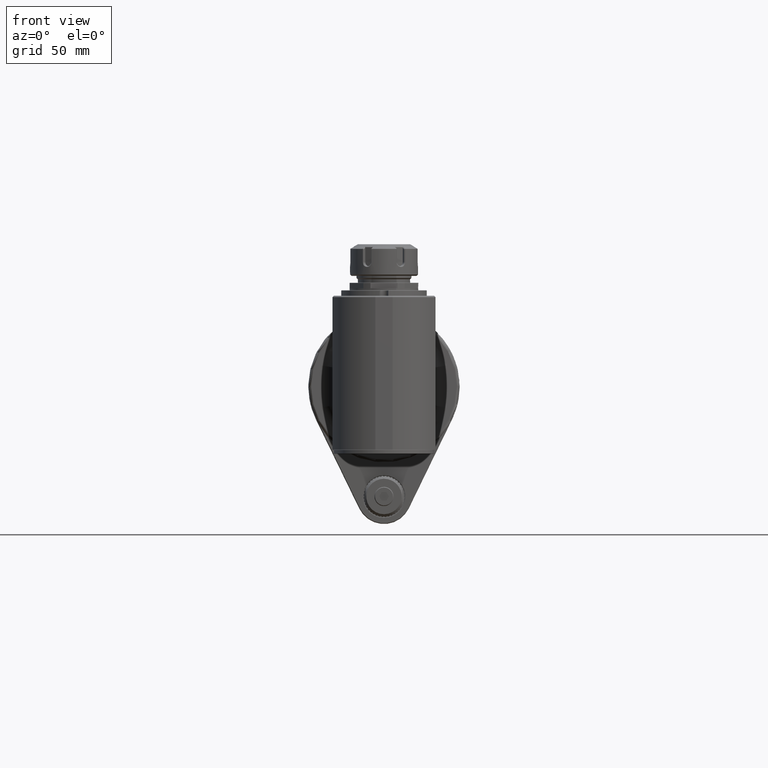
[diagram: clean part render]
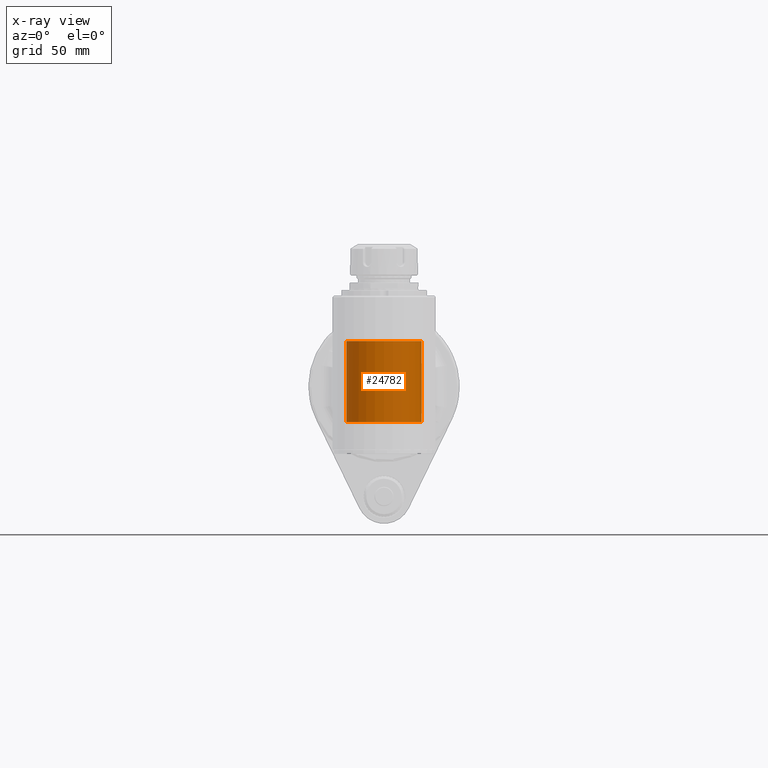
[diagram: x-ray — body ghosted, one internal face saturated and labeled with its STEP entity id]
A machine part, front view, then the same camera in x-ray: the body is ghosted and one INTERNAL B-rep face — a face not visible from any outside direction — is saturated and labeled: STEP entity #24782.
In plain terms, the highlighted cylindrical surface (bore or boss wall) has radius 27.5 mm, axis along (0, 0, -1).
Its self-contained STEP definition (entity closure, byte-faithful):
#346=B_SPLINE_CURVE_WITH_KNOTS('',3,(#36040,#36041,#36042,#36043,#36044,
#36045,#36046,#36047,#36048,#36049,#36050,#36051,#36052,#36053,#36054,#36055,
#36056,#36057),.UNSPECIFIED.,.F.,.F.,(4,2,2,2,2,2,2,2,4),(-10.0841049185803,
-9.9106032085018,-9.73710149842327,-9.3900980782662,-8.69609123795207,-8.00208439763794,
-7.3080775573238,-6.74157128281539,-6.22928469829338),.UNSPECIFIED.);
#347=B_SPLINE_CURVE_WITH_KNOTS('',3,(#36060,#36061,#36062,#36063,#36064,
#36065,#36066,#36067,#36068,#36069,#36070,#36071,#36072,#36073,#36074,#36075,
#36076,#36077),.UNSPECIFIED.,.F.,.F.,(4,2,2,2,2,2,2,2,4),(-13.9389251388673,
-13.4266385543453,-12.8601322798369,-12.1661254395227,-11.4721185992086,
-10.7781117588945,-10.4311083387374,-10.2576066286589,-10.0841049185803),
 .UNSPECIFIED.);
#351=B_SPLINE_CURVE_WITH_KNOTS('',3,(#36172,#36173,#36174,#36175,#36176,
#36177,#36178,#36179,#36180,#36181,#36182,#36183,#36184,#36185,#36186,#36187,
#36188,#36189),.UNSPECIFIED.,.F.,.F.,(4,2,2,2,2,2,2,2,4),(-3.8548202202869,
-3.3425336357649,-2.77602736125649,-2.08202052094237,-1.38801368062824,
-0.694006840314122,-0.347003420157061,-0.17350171007853,0.),
 .UNSPECIFIED.);
#352=B_SPLINE_CURVE_WITH_KNOTS('',3,(#36191,#36192,#36193,#36194,#36195,
#36196,#36197,#36198,#36199,#36200,#36201,#36202,#36203,#36204,#36205,#36206,
#36207,#36208,#36209,#36210,#36211,#36212,#36213,#36214,#36215,#36216,#36217,
#36218,#36219,#36220,#36221),.UNSPECIFIED.,.F.,.F.,(4,3,3,3,3,3,3,3,3,3,
4),(0.,0.1,0.2,0.3,0.4,0.5,0.6,0.7,0.8,0.9,1.),.UNSPECIFIED.);
#355=B_SPLINE_CURVE_WITH_KNOTS('',3,(#36249,#36250,#36251,#36252,#36253,
#36254,#36255,#36256,#36257,#36258,#36259,#36260),.UNSPECIFIED.,.F.,.F.,
(4,2,2,2,2,4),(-20.1682098371607,-19.9947081270821,-19.8212064170036,-19.4742029968466,
-18.7801961565324,-18.3290605522606),.UNSPECIFIED.);
#356=B_SPLINE_CURVE_WITH_KNOTS('',3,(#36266,#36267,#36268,#36269,#36270,
#36271,#36272,#36273,#36274,#36275,#36276,#36277,#36278,#36279,#36280,#36281,
#36282,#36283,#36284),.UNSPECIFIED.,.F.,.F.,(4,2,3,2,2,2,2,2,4),(2.79262586300362,
2.89720806955063,3.06038654016411,3.22356501077758,3.38674348139105,3.58908985584481,
3.79143623029857,4.02236570158723,4.15806907937397),.UNSPECIFIED.);
#357=B_SPLINE_CURVE_WITH_KNOTS('',3,(#36285,#36286,#36287,#36288,#36289,
#36290,#36291,#36292,#36293,#36294,#36295,#36296,#36297,#36298),
 .UNSPECIFIED.,.F.,.F.,(4,2,2,2,2,2,4),(-5.70518386143808,-5.63679759697968,
-5.08484248751995,-4.53288737806022,-3.98093226860049,-3.42897715914076,
-3.36059089468718),.UNSPECIFIED.);
#876=LINE('',#35931,#3289);
#877=LINE('',#35935,#3290);
#878=LINE('',#35939,#3291);
#879=LINE('',#35942,#3292);
#884=LINE('',#36264,#3297);
#885=LINE('',#36265,#3298);
#886=LINE('',#36299,#3299);
#3289=VECTOR('',#28766,0.4510274179176);
#3290=VECTOR('',#28769,4.329645421411);
#3291=VECTOR('',#28772,4.329645421411);
#3292=VECTOR('',#28775,0.4510274179175);
#3297=VECTOR('',#28802,27.5);
#3298=VECTOR('',#28803,10.53565375285);
#3299=VECTOR('',#28804,10.53565375285);
#5696=CYLINDRICAL_SURFACE('',#26348,27.5);
#6119=FACE_OUTER_BOUND('',#7571,.T.);
#7571=EDGE_LOOP('',(#16459,#16460,#16461,#16462,#16463,#16464,#16465,#16466,
#16467,#16468,#16469,#16470,#16471,#16472,#16473,#16474,#16475,#16476));
#9160=CIRCLE('',#26340,27.5);
#9161=CIRCLE('',#26341,27.5);
#9165=CIRCLE('',#26349,27.5);
#10071=VERTEX_POINT('',#35923);
#10074=VERTEX_POINT('',#35928);
#10075=VERTEX_POINT('',#35930);
#10076=VERTEX_POINT('',#35932);
#10077=VERTEX_POINT('',#35934);
#10078=VERTEX_POINT('',#35936);
#10079=VERTEX_POINT('',#35938);
#10080=VERTEX_POINT('',#35940);
#10083=VERTEX_POINT('',#36030);
#10086=VERTEX_POINT('',#36039);
#10087=VERTEX_POINT('',#36058);
#10090=VERTEX_POINT('',#36169);
#10091=VERTEX_POINT('',#36170);
#10092=VERTEX_POINT('',#36190);
#10094=VERTEX_POINT('',#36231);
#10095=VERTEX_POINT('',#36262);
#12591=EDGE_CURVE('',#10075,#10074,#876,.T.);
#12593=EDGE_CURVE('',#10077,#10076,#877,.T.);
#12595=EDGE_CURVE('',#10078,#10079,#878,.T.);
#12597=EDGE_CURVE('',#10080,#10071,#879,.T.);
#12601=EDGE_CURVE('',#10071,#10083,#9160,.T.);
#12602=EDGE_CURVE('',#10083,#10074,#9161,.T.);
#12606=EDGE_CURVE('',#10086,#10075,#346,.T.);
#12608=EDGE_CURVE('',#10076,#10087,#347,.T.);
#12613=EDGE_CURVE('',#10080,#10090,#351,.T.);
#12614=EDGE_CURVE('',#10092,#10079,#352,.T.);
#12617=EDGE_CURVE('',#10091,#10094,#355,.T.);
#12618=EDGE_CURVE('',#10095,#10095,#9165,.T.);
#12619=EDGE_CURVE('',#10095,#10083,#884,.T.);
#12620=EDGE_CURVE('',#10091,#10090,#885,.T.);
#12621=EDGE_CURVE('',#10094,#10092,#356,.T.);
#12622=EDGE_CURVE('',#10077,#10078,#357,.T.);
#12623=EDGE_CURVE('',#10087,#10086,#886,.T.);
#16459=ORIENTED_EDGE('',*,*,#12618,.T.);
#16460=ORIENTED_EDGE('',*,*,#12619,.T.);
#16461=ORIENTED_EDGE('',*,*,#12601,.F.);
#16462=ORIENTED_EDGE('',*,*,#12597,.F.);
#16463=ORIENTED_EDGE('',*,*,#12613,.T.);
#16464=ORIENTED_EDGE('',*,*,#12620,.F.);
#16465=ORIENTED_EDGE('',*,*,#12617,.T.);
#16466=ORIENTED_EDGE('',*,*,#12621,.T.);
#16467=ORIENTED_EDGE('',*,*,#12614,.T.);
#16468=ORIENTED_EDGE('',*,*,#12595,.F.);
#16469=ORIENTED_EDGE('',*,*,#12622,.F.);
#16470=ORIENTED_EDGE('',*,*,#12593,.T.);
#16471=ORIENTED_EDGE('',*,*,#12608,.T.);
#16472=ORIENTED_EDGE('',*,*,#12623,.T.);
#16473=ORIENTED_EDGE('',*,*,#12606,.T.);
#16474=ORIENTED_EDGE('',*,*,#12591,.T.);
#16475=ORIENTED_EDGE('',*,*,#12602,.F.);
#16476=ORIENTED_EDGE('',*,*,#12619,.F.);
#24782=ADVANCED_FACE('',(#6119),#5696,.F.);
#26340=AXIS2_PLACEMENT_3D('',#36031,#28780,#28781);
#26341=AXIS2_PLACEMENT_3D('',#36032,#28782,#28783);
#26348=AXIS2_PLACEMENT_3D('',#36261,#28798,#28799);
#26349=AXIS2_PLACEMENT_3D('',#36263,#28800,#28801);
#28766=DIRECTION('',(5.120007785518E-14,0.,-1.));
#28769=DIRECTION('',(-3.692499038268E-14,0.,-1.));
#28772=DIRECTION('',(3.569415736993E-14,0.,-1.));
#28775=DIRECTION('',(-1.181540258197E-14,0.,-1.));
#28780=DIRECTION('center_axis',(0.,0.,1.));
#28781=DIRECTION('ref_axis',(0.,-1.,0.));
#28782=DIRECTION('center_axis',(0.,0.,1.));
#28783=DIRECTION('ref_axis',(0.,-1.,0.));
#28798=DIRECTION('center_axis',(0.,0.,-1.));
#28799=DIRECTION('ref_axis',(0.,1.,0.));
#28800=DIRECTION('center_axis',(0.,0.,1.));
#28801=DIRECTION('ref_axis',(0.,-1.,0.));
#28802=DIRECTION('',(0.,0.,-1.));
#28803=DIRECTION('',(0.,0.,-1.));
#28804=DIRECTION('',(0.,0.,-1.));
#35923=CARTESIAN_POINT('',(-11.45643923739,25.,-26.));
#35928=CARTESIAN_POINT('',(11.45643923739,25.,-26.));
#35930=CARTESIAN_POINT('',(11.45643923739,25.,-25.54897258208));
#35931=CARTESIAN_POINT('',(11.45643923739,25.,-25.54897258208));
#35932=CARTESIAN_POINT('',(11.45643923739,25.,25.54897258208));
#35934=CARTESIAN_POINT('',(11.45643923739,25.,29.87861800349));
#35935=CARTESIAN_POINT('',(11.45643923739,25.,29.87861800349));
#35936=CARTESIAN_POINT('',(-11.45643923739,25.,29.87861800349));
#35938=CARTESIAN_POINT('',(-11.45643923739,25.,25.54897258208));
#35939=CARTESIAN_POINT('',(-11.45643923739,25.,29.87861800349));
#35940=CARTESIAN_POINT('',(-11.45643923739,25.,-25.54897258208));
#35942=CARTESIAN_POINT('',(-11.45643923739,25.,-25.54897258208));
#36030=CARTESIAN_POINT('',(-3.36777869765522E-15,-27.5,-26.));
#36031=CARTESIAN_POINT('Origin',(0.,0.,-26.));
#36032=CARTESIAN_POINT('Origin',(0.,0.,-26.));
#36039=CARTESIAN_POINT('',(27.5,0.,-5.267826876426));
#36040=CARTESIAN_POINT('Ctrl Pts',(27.5,3.46944695195361E-17,-5.26782687642608));
#36041=CARTESIAN_POINT('Ctrl Pts',(27.5,0.578339033595115,-5.26782687642608));
#36042=CARTESIAN_POINT('Ctrl Pts',(27.4823875646799,1.09844828936851,-5.36086677523754));
#36043=CARTESIAN_POINT('Ctrl Pts',(27.426100836408,2.07297118897236,-5.64176479669198));
#36044=CARTESIAN_POINT('Ctrl Pts',(27.3871908226094,2.5272218906284,-5.83014067086274));
#36045=CARTESIAN_POINT('Ctrl Pts',(27.244244103092,3.84471519058096,-6.47656045990681));
#36046=CARTESIAN_POINT('Ctrl Pts',(27.115004469536,4.66019951872418,-7.01059672668737));
#36047=CARTESIAN_POINT('Ctrl Pts',(26.6185592126294,7.10394350098193,-8.77154722912464));
#36048=CARTESIAN_POINT('Ctrl Pts',(26.1475119602976,8.6940820558057,-10.1389267429229));
#36049=CARTESIAN_POINT('Ctrl Pts',(24.8427195389038,11.9213561315783,-13.0126669745264));
#36050=CARTESIAN_POINT('Ctrl Pts',(24.0129436307945,13.5290117942645,-14.5094731667438));
#36051=CARTESIAN_POINT('Ctrl Pts',(21.9900055458771,16.616114960297,-17.4237175139347));
#36052=CARTESIAN_POINT('Ctrl Pts',(20.7965379858708,18.0943349793894,-18.8422437393918));
#36053=CARTESIAN_POINT('Ctrl Pts',(18.3425547318722,20.5483182333879,-21.210851456729));
#36054=CARTESIAN_POINT('Ctrl Pts',(17.0717767698486,21.6284731203249,-22.2596283420069));
#36055=CARTESIAN_POINT('Ctrl Pts',(14.3658617231166,23.5013644826384,-24.0836752296404));
#36056=CARTESIAN_POINT('Ctrl Pts',(12.958121649513,24.311842667666,-24.8756017350521));
#36057=CARTESIAN_POINT('Ctrl Pts',(11.4564392373906,24.9999999999995,-25.5489725820819));
#36058=CARTESIAN_POINT('',(27.5,0.,5.267826876426));
#36060=CARTESIAN_POINT('Ctrl Pts',(11.4564392373907,24.9999999999995,25.5489725820819));
#36061=CARTESIAN_POINT('Ctrl Pts',(12.958121649513,24.311842667666,24.8756017350521));
#36062=CARTESIAN_POINT('Ctrl Pts',(14.3658617231166,23.5013644826385,24.0836752296404));
#36063=CARTESIAN_POINT('Ctrl Pts',(17.0717767698486,21.6284731203249,22.2596283420069));
#36064=CARTESIAN_POINT('Ctrl Pts',(18.3425547318722,20.548318233388,21.210851456729));
#36065=CARTESIAN_POINT('Ctrl Pts',(20.7965379858708,18.0943349793894,18.8422437393918));
#36066=CARTESIAN_POINT('Ctrl Pts',(21.9900055458771,16.616114960297,17.4237175139347));
#36067=CARTESIAN_POINT('Ctrl Pts',(24.0129436307945,13.5290117942645,14.5094731667438));
#36068=CARTESIAN_POINT('Ctrl Pts',(24.8427195389038,11.9213561315783,13.0126669745264));
#36069=CARTESIAN_POINT('Ctrl Pts',(26.1475119602976,8.6940820558057,10.1389267429229));
#36070=CARTESIAN_POINT('Ctrl Pts',(26.6185592126294,7.10394350098193,8.77154722912464));
#36071=CARTESIAN_POINT('Ctrl Pts',(27.115004469536,4.66019951872418,7.01059672668737));
#36072=CARTESIAN_POINT('Ctrl Pts',(27.244244103092,3.84471519058094,6.47656045990683));
#36073=CARTESIAN_POINT('Ctrl Pts',(27.3871908226094,2.52722189062838,5.83014067086275));
#36074=CARTESIAN_POINT('Ctrl Pts',(27.426100836408,2.07297118897234,5.64176479669199));
#36075=CARTESIAN_POINT('Ctrl Pts',(27.4823875646799,1.09844828936849,5.36086677523755));
#36076=CARTESIAN_POINT('Ctrl Pts',(27.5,0.578339033595109,5.26782687642608));
#36077=CARTESIAN_POINT('Ctrl Pts',(27.5,6.93889390390723E-17,5.26782687642608));
#36169=CARTESIAN_POINT('',(-27.5,0.,-5.267826876427));
#36170=CARTESIAN_POINT('',(-27.5,0.,5.267826876427));
#36172=CARTESIAN_POINT('Ctrl Pts',(-11.4564392373907,24.9999999999995,-25.548972582082));
#36173=CARTESIAN_POINT('Ctrl Pts',(-12.958121649513,24.311842667666,-24.8756017350522));
#36174=CARTESIAN_POINT('Ctrl Pts',(-14.3658617231165,23.5013644826385,-24.0836752296405));
#36175=CARTESIAN_POINT('Ctrl Pts',(-17.0717767698485,21.6284731203249,-22.259628342007));
#36176=CARTESIAN_POINT('Ctrl Pts',(-18.3425547318721,20.548318233388,-21.2108514567291));
#36177=CARTESIAN_POINT('Ctrl Pts',(-20.7965379858707,18.0943349793894,-18.8422437393919));
#36178=CARTESIAN_POINT('Ctrl Pts',(-21.990005545877,16.6161149602971,-17.4237175139349));
#36179=CARTESIAN_POINT('Ctrl Pts',(-24.0129436307944,13.5290117942646,-14.509473166744));
#36180=CARTESIAN_POINT('Ctrl Pts',(-24.8427195389037,11.9213561315784,-13.0126669745267));
#36181=CARTESIAN_POINT('Ctrl Pts',(-26.1475119602976,8.6940820558058,-10.1389267429233));
#36182=CARTESIAN_POINT('Ctrl Pts',(-26.6185592126294,7.10394350098201,-8.77154722912506));
#36183=CARTESIAN_POINT('Ctrl Pts',(-27.115004469536,4.66019951872423,-7.01059672668786));
#36184=CARTESIAN_POINT('Ctrl Pts',(-27.244244103092,3.84471519058099,-6.47656045990731));
#36185=CARTESIAN_POINT('Ctrl Pts',(-27.3871908226094,2.5272218906284,-5.83014067086328));
#36186=CARTESIAN_POINT('Ctrl Pts',(-27.426100836408,2.07297118897235,-5.64176479669254));
#36187=CARTESIAN_POINT('Ctrl Pts',(-27.4823875646799,1.09844828936849,-5.36086677523813));
#36188=CARTESIAN_POINT('Ctrl Pts',(-27.5,0.578339033595102,-5.26782687642669));
#36189=CARTESIAN_POINT('Ctrl Pts',(-27.5,0.,-5.26782687642669));
#36190=CARTESIAN_POINT('',(-19.13936454586,19.74676491937,20.43733653833));
#36191=CARTESIAN_POINT('Ctrl Pts',(-19.1393645458577,19.7467649193676,20.43733653833));
#36192=CARTESIAN_POINT('Ctrl Pts',(-18.8976954992897,19.9810003498597,20.66365722219));
#36193=CARTESIAN_POINT('Ctrl Pts',(-18.6536571654466,20.2089277651095,20.884149574125));
#36194=CARTESIAN_POINT('Ctrl Pts',(-18.4076054119116,20.43061582526,21.0988166255692));
#36195=CARTESIAN_POINT('Ctrl Pts',(-18.1615536583765,20.6523038854105,21.3134836770133));
#36196=CARTESIAN_POINT('Ctrl Pts',(-17.91348818242,20.8677522859739,21.5223254279667));
#36197=CARTESIAN_POINT('Ctrl Pts',(-17.6637845343082,21.0770186678651,21.725347314265));
#36198=CARTESIAN_POINT('Ctrl Pts',(-17.4140808861963,21.2862850497564,21.9283692005633));
#36199=CARTESIAN_POINT('Ctrl Pts',(-17.1627406287388,21.4893713116283,22.1255712222067));
#36200=CARTESIAN_POINT('Ctrl Pts',(-16.9099638755263,21.6864732432084,22.3171037934667));
#36201=CARTESIAN_POINT('Ctrl Pts',(-16.6571871223139,21.8835751747885,22.5086363647267));
#36202=CARTESIAN_POINT('Ctrl Pts',(-16.4029745801653,22.0746935956588,22.6944994856033));
#36203=CARTESIAN_POINT('Ctrl Pts',(-16.1474213573885,22.2600715072291,22.874894174775));
#36204=CARTESIAN_POINT('Ctrl Pts',(-15.8918681346116,22.4454494187995,23.0552888639467));
#36205=CARTESIAN_POINT('Ctrl Pts',(-15.6349720837778,22.6250838233642,23.2302151214133));
#36206=CARTESIAN_POINT('Ctrl Pts',(-15.377070393636,22.7990286220524,23.3996945729933));
#36207=CARTESIAN_POINT('Ctrl Pts',(-15.1191687034942,22.9729734207405,23.5691740245733));
#36208=CARTESIAN_POINT('Ctrl Pts',(-14.8602612002974,23.1412285270575,23.7332066702667));
#36209=CARTESIAN_POINT('Ctrl Pts',(-14.6006972575893,23.3038546080305,23.89183206856));
#36210=CARTESIAN_POINT('Ctrl Pts',(-14.3411333148811,23.4664806890035,24.0504574668533));
#36211=CARTESIAN_POINT('Ctrl Pts',(-14.0809159562983,23.6234824856951,24.2036756177467));
#36212=CARTESIAN_POINT('Ctrl Pts',(-13.8199430642976,23.7751797826972,24.3517796823867));
#36213=CARTESIAN_POINT('Ctrl Pts',(-13.558970172297,23.9268770796992,24.4998837470267));
#36214=CARTESIAN_POINT('Ctrl Pts',(-13.2972396437503,24.0732661613679,24.6428737254133));
#36215=CARTESIAN_POINT('Ctrl Pts',(-13.0349585273165,24.2144555212613,24.7808364707717));
#36216=CARTESIAN_POINT('Ctrl Pts',(-12.7726774108826,24.3556448811546,24.91879921613));
#36217=CARTESIAN_POINT('Ctrl Pts',(-12.5098455603462,24.491634344979,25.05173472846));
#36218=CARTESIAN_POINT('Ctrl Pts',(-12.2466801992399,24.6225267610281,25.1797304214625));
#36219=CARTESIAN_POINT('Ctrl Pts',(-11.9835148381336,24.7534191770773,25.307726114465));
#36220=CARTESIAN_POINT('Ctrl Pts',(-11.720015745031,24.8792140702321,25.43078198814));
#36221=CARTESIAN_POINT('Ctrl Pts',(-11.4564392373899,24.9999999999999,25.54897258208));
#36231=CARTESIAN_POINT('',(-23.9971647965,13.43078857438,14.4269221156));
#36249=CARTESIAN_POINT('Ctrl Pts',(-27.5,-6.31439345255558E-15,5.26782687642668));
#36250=CARTESIAN_POINT('Ctrl Pts',(-27.5,0.578339033595091,5.26782687642668));
#36251=CARTESIAN_POINT('Ctrl Pts',(-27.4823875646799,1.09844828936848,5.36086677523814));
#36252=CARTESIAN_POINT('Ctrl Pts',(-27.426100836408,2.07297118897234,5.64176479669255));
#36253=CARTESIAN_POINT('Ctrl Pts',(-27.3871908226094,2.5272218906284,5.8301406708633));
#36254=CARTESIAN_POINT('Ctrl Pts',(-27.244244103092,3.84471519058099,6.47656045990733));
#36255=CARTESIAN_POINT('Ctrl Pts',(-27.115004469536,4.66019951872422,7.01059672668786));
#36256=CARTESIAN_POINT('Ctrl Pts',(-26.6185592126294,7.10394350098201,8.77154722912505));
#36257=CARTESIAN_POINT('Ctrl Pts',(-26.1475119602976,8.6940820558058,10.1389267429233));
#36258=CARTESIAN_POINT('Ctrl Pts',(-25.0710289227271,11.356655614019,12.5098269435854));
#36259=CARTESIAN_POINT('Ctrl Pts',(-24.5725431183583,12.4027440680176,13.4698608450594));
#36260=CARTESIAN_POINT('Ctrl Pts',(-23.9971647964996,13.430788574378,14.4269221156019));
#36261=CARTESIAN_POINT('Origin',(0.,0.,71.6));
#36262=CARTESIAN_POINT('',(-3.36777869765522E-15,-27.5,33.));
#36263=CARTESIAN_POINT('Origin',(0.,0.,33.));
#36264=CARTESIAN_POINT('',(-3.36777869765522E-15,-27.5,71.6));
#36265=CARTESIAN_POINT('',(-27.5,0.,5.267826876427));
#36266=CARTESIAN_POINT('Ctrl Pts',(-23.9971647965002,13.4307885743768,14.4269221155976));
#36267=CARTESIAN_POINT('Ctrl Pts',(-24.1098026169684,13.229535436847,14.7060877802937));
#36268=CARTESIAN_POINT('Ctrl Pts',(-24.2050108011987,13.0533852113497,15.0213460603263));
#36269=CARTESIAN_POINT('Ctrl Pts',(-24.3890393562847,12.7075471861438,15.880454438952));
#36270=CARTESIAN_POINT('Ctrl Pts',(-24.4436085715673,12.6,16.4560717646218));
#36271=CARTESIAN_POINT('Ctrl Pts',(-24.4436085715673,12.6,17.));
#36272=CARTESIAN_POINT('Ctrl Pts',(-24.4436085715673,12.6,17.5439282353782));
#36273=CARTESIAN_POINT('Ctrl Pts',(-24.3890393562847,12.7075471861438,18.119545561048));
#36274=CARTESIAN_POINT('Ctrl Pts',(-24.1647383238359,13.1290677815615,19.1666596690792));
#36275=CARTESIAN_POINT('Ctrl Pts',(-23.993939558416,13.4424867193336,19.638150761612));
#36276=CARTESIAN_POINT('Ctrl Pts',(-23.5452744626983,14.2167309976564,20.4650626943449));
#36277=CARTESIAN_POINT('Ctrl Pts',(-23.2178571911558,14.7526770928249,20.8316568345704));
#36278=CARTESIAN_POINT('Ctrl Pts',(-22.4620610357493,15.8797415316205,21.2984966497754));
#36279=CARTESIAN_POINT('Ctrl Pts',(-22.0329224867584,16.4698287981318,21.4));
#36280=CARTESIAN_POINT('Ctrl Pts',(-21.1401116531073,17.6050622635094,21.4));
#36281=CARTESIAN_POINT('Ctrl Pts',(-20.6012961587182,18.2332438570281,21.2699563741602));
#36282=CARTESIAN_POINT('Ctrl Pts',(-19.7501791532886,19.1413858400072,20.8613886219366));
#36283=CARTESIAN_POINT('Ctrl Pts',(-19.4362863816741,19.4589762471207,20.667307569767));
#36284=CARTESIAN_POINT('Ctrl Pts',(-19.139364545858,19.7467649193673,20.4373365383292));
#36285=CARTESIAN_POINT('Ctrl Pts',(11.45643923739,24.9999999999998,29.8786180034903));
#36286=CARTESIAN_POINT('Ctrl Pts',(11.2508986440499,25.0941905327366,29.9574289885949));
#36287=CARTESIAN_POINT('Ctrl Pts',(11.0437784967412,25.1860371497073,30.0344122569367));
#36288=CARTESIAN_POINT('Ctrl Pts',(9.15148919154534,25.9972307201261,30.7153702665779));
#36289=CARTESIAN_POINT('Ctrl Pts',(7.36554266558662,26.5608947217148,31.195751023073));
#36290=CARTESIAN_POINT('Ctrl Pts',(3.70978611466718,27.3124483378103,31.8380839197838));
#36291=CARTESIAN_POINT('Ctrl Pts',(1.83985036486577,27.5,31.99971583934));
#36292=CARTESIAN_POINT('Ctrl Pts',(-1.83985036486577,27.5,31.99971583934));
#36293=CARTESIAN_POINT('Ctrl Pts',(-3.70978611466718,27.3124483378103,31.8380839197838));
#36294=CARTESIAN_POINT('Ctrl Pts',(-7.36554266558663,26.5608947217148,31.195751023073));
#36295=CARTESIAN_POINT('Ctrl Pts',(-9.15148919154535,25.9972307201261,30.7153702665779));
#36296=CARTESIAN_POINT('Ctrl Pts',(-11.0437784967265,25.1860371497136,30.034412256942));
#36297=CARTESIAN_POINT('Ctrl Pts',(-11.2508986440207,25.0941905327495,29.9574289886058));
#36298=CARTESIAN_POINT('Ctrl Pts',(-11.4564392373466,25.0000000000197,29.878618003507));
#36299=CARTESIAN_POINT('',(27.5,0.,5.267826876426));